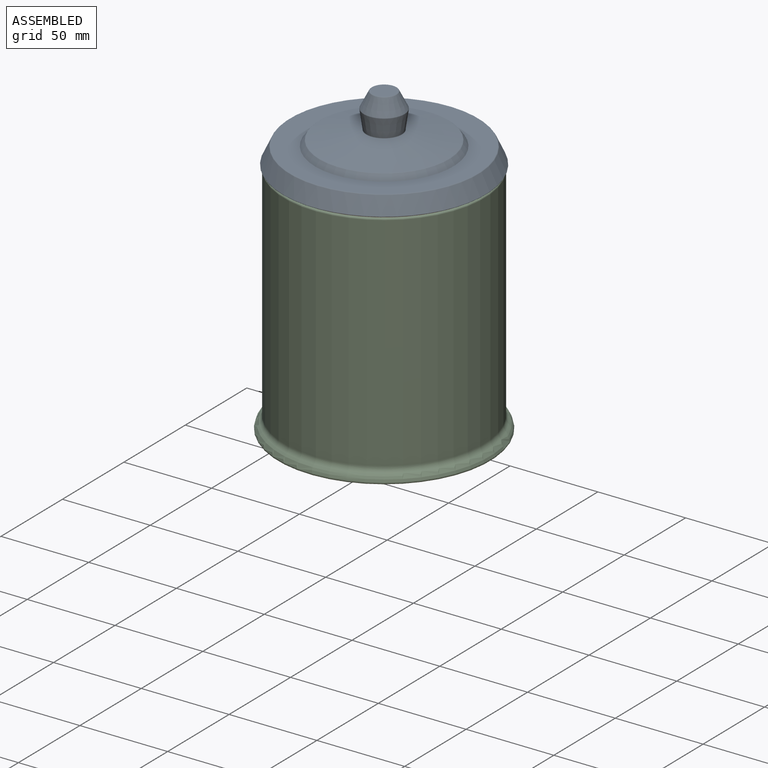
[diagram: assembled view]
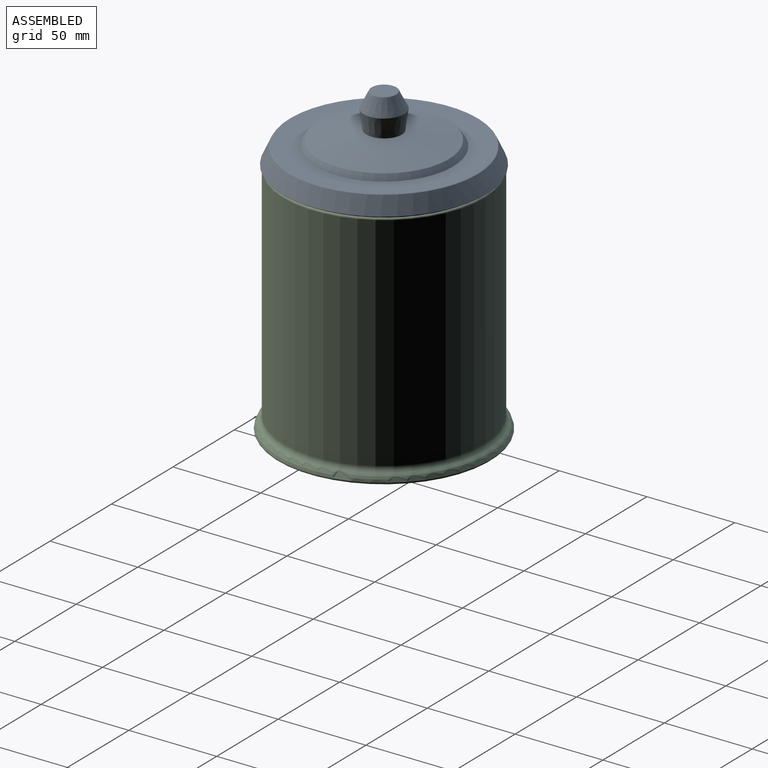
[diagram: assembled view, second angle]
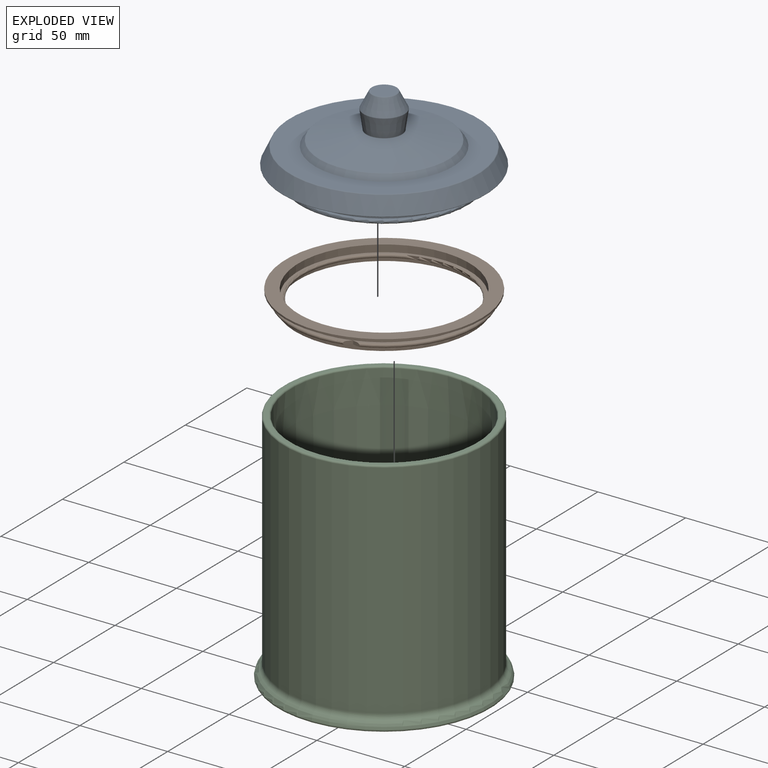
[diagram: exploded view]
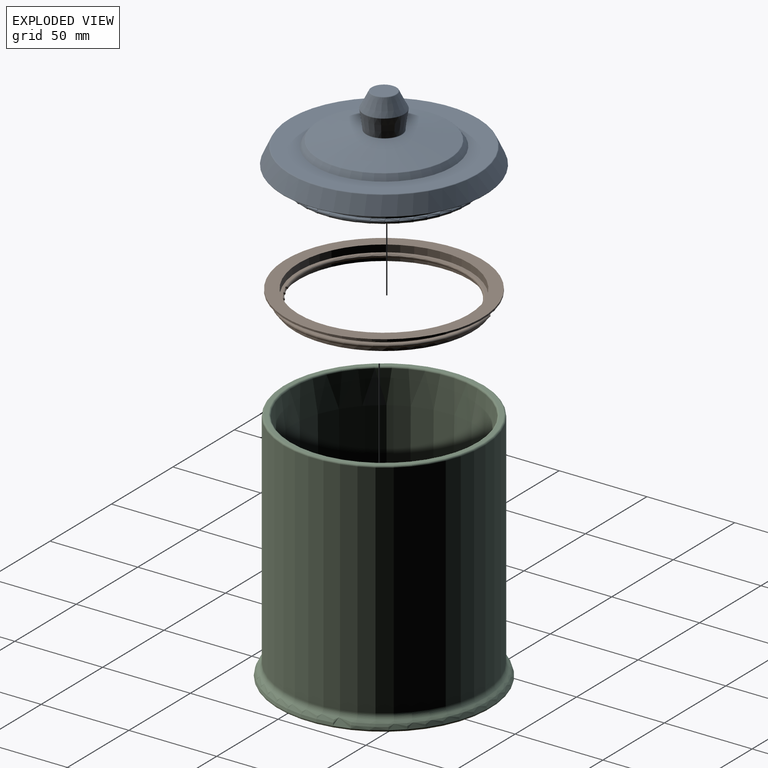
[diagram: exploded view, second angle]
ASSEMBLY  parts=3 mates=4
PART A: 24 faces, bbox 125.4x125.4x46.7 mm
  f0: torus R=53.18mm, axis (0,0,1), area 191.1mm2, adj f1,f23
  f1: cone r=53.18mm half-angle=89.8deg, axis (0,0,1), area 4017.5mm2, adj f0,f2
  f2: cone r=39.36mm half-angle=36deg, axis (0,0,-1), area 917.9mm2, adj f1,f3
  f3: torus R=36.71mm, axis (0,0,1), area 87.2mm2, adj f2,f4
  f4: cone r=10.23mm half-angle=79deg, axis (0,0,-1), area 4000.5mm2, adj f3,f5
  f5: torus R=10.28mm, axis (0,0,1), area 24.2mm2, adj f4,f6
  f6: cone r=10.03mm half-angle=8.3deg, axis (0,0,1), area 727.7mm2, adj f5,f7
  f7: torus R=11.08mm, axis (0,0,1), area 22.4mm2, adj f6,f8
  f8: cone r=11.53mm half-angle=27.1deg, axis (0,0,-1), area 565.4mm2, adj f7,f9
  f9: torus R=6.69mm, axis (0,0,1), area 24mm2, adj f8,f10
  f10: plane 13.39x13.39mm, normal (0,0,1), area 140.8mm2, adj f9
  f11: sphere r=80.14mm, area 5601mm2, adj f12
  f12: torus R=38.83mm, axis (0,0,1), area 990.3mm2, adj f11,f13
  f13: cone r=42.57mm half-angle=2deg, axis (0,0,-1), area 1478.9mm2, adj f12,f14
  f14: torus R=43.77mm, axis (0,0,1), area 416.3mm2, adj f13,f15
  f15: plane 93.6x93.6mm, normal (0,0,-1), area 863.3mm2, adj f14,f16
  f16: torus R=46.8mm, axis (0,0,1), area 468.2mm2, adj f15,f17
  f17: cylinder r=47.8mm len=95.6mm, axis (0,0,1), area 150.2mm2, adj f16,f18
  f18: torus R=46.8mm, axis (0,0,1), area 468.2mm2, adj f17,f19
  f19: plane 93.6x93.6mm, normal (0,0,1), area 87.9mm2, adj f18,f20
  f20: cylinder r=46.5mm len=93mm, axis (0,0,1), area 1753mm2, adj f19,f21
  f21: plane 115.32x115.32mm, normal (0,0,-1), area 3651mm2, adj f20,f22
  f22: torus R=57.66mm, axis (0,0,1), area 182.3mm2, adj f21,f23
  f23: cone r=57.88mm half-angle=25deg, axis (0,0,-1), area 3522.3mm2, adj f0,f22
PART B: 21 faces, bbox 115.3x115.1x8.5 mm
  f0: cylinder r=50.75mm len=101.5mm, axis (0,0,-1), area 797.2mm2, adj f2,f20
  f1: cylinder r=48.75mm len=97.5mm, axis (0,0,-1), area 765.8mm2, adj f12,f20
  f2: plane 104.5x104.38mm, normal (0,0,-1), area 477.9mm2, adj f0,f4,f5,f14,f15,f16,f17,f18
  f3: plane 104.5x104.38mm, normal (0,0,1), area 477.9mm2, adj f4,f5,f6,f14,f15,f16,f17,f18
  f4: torus R=52.25mm, axis (0,0,-1), area 500mm2, adj f2,f3,f14,f17
  f5: torus R=52.25mm, axis (0,0,-1), area 500mm2, adj f2,f3,f15,f16
  f6: cylinder r=50.75mm len=101.5mm, axis (0,0,-1), area 956.6mm2, adj f3,f7
  f7: plane 112x112mm, normal (0,0,-1), area 1760.7mm2, adj f6,f8
  f8: cylinder r=56mm len=112mm, axis (0,0,-1), area 351.9mm2, adj f7,f9
  f9: plane 112x112mm, normal (0,0,1), area 2385.8mm2, adj f8,f10
  f10: cylinder r=48.75mm len=97.5mm, axis (0,0,-1), area 1225.2mm2, adj f9,f11
  f11: plane 97.5x97.5mm, normal (0,0,1), area 452.4mm2, adj f10,f13
  f12: plane 97.5x97.5mm, normal (0,0,-1), area 452.4mm2, adj f1,f13
  f13: torus R=47.25mm, axis (0,0,1), area 920.1mm2, adj f11,f12
  f14: plane 3.56x2.06mm, normal (0.5,0.87,0), area 7.5mm2, adj f2,f3,f4,f19
  f15: plane 3.56x2.06mm, normal (-0.5,0.87,0), area 7.5mm2, adj f2,f3,f5,f19
  f16: plane 3.56x2.06mm, normal (-0.5,-0.87,0), area 7.5mm2, adj f2,f3,f5,f18
  f17: plane 3.56x2.06mm, normal (0.5,-0.87,0), area 7.5mm2, adj f2,f3,f4,f18
  f18: cylinder r=1mm len=2mm, axis (0,0,-1), area 2.1mm2, adj f2,f3,f16,f17
  f19: cylinder r=1mm len=2mm, axis (0,0,-1), area 2.1mm2, adj f2,f3,f14,f15
  f20: plane 101.5x101.5mm, normal (0,0,-1), area 625.2mm2, adj f0,f1
PART C: 82 faces, bbox 132.2x132.2x135.5 mm
  f0: plane 98.5x98.5mm, normal (0,0,-1), area 7314.3mm2, adj f5,f23,f24,f25,f26,f27,f28,f29
  f1: torus R=53.99mm, axis (0,0,1), area 520.8mm2, adj f2,f13
  f2: cone r=52.99mm half-angle=1deg, axis (0,0,1), area 36828.5mm2, adj f1,f3
  f3: torus R=41.02mm, axis (0,0,1), area 4621.2mm2, adj f2,f4
  f4: plane 82.05x82.05mm, normal (0,0,1), area 5287mm2, adj f3
  f5: torus R=49.25mm, axis (0,0,1), area 617.4mm2, adj f0,f6
  f6: torus R=51.75mm, axis (0,0,1), area 628.6mm2, adj f5,f7
  f7: plane 119.53x119.53mm, normal (0,0,-1), area 2807.6mm2, adj f6,f8
  f8: torus R=59.76mm, axis (0,0,1), area 660.1mm2, adj f7,f9
  f9: torus R=54.83mm, axis (0,0,1), area 1653.8mm2, adj f8,f10
  f10: torus R=61.05mm, axis (0,0,1), area 1302.2mm2, adj f9,f11
  f11: cylinder r=57.05mm len=126.5mm, axis (0,0,1), area 45344.6mm2, adj f10,f12
  f12: torus R=56.05mm, axis (0,0,1), area 559.5mm2, adj f11,f13
  f13: plane 112.1x112.1mm, normal (0,0,1), area 712.7mm2, adj f1,f12
  f14: plane 4.85x0.5mm, normal (-1,0,0), area 2.4mm2, adj f15,f41,f42,f43
  f15: plane 5.35x0.5mm, normal (0,-1,0), area 2.7mm2, adj f14,f16,f42,f43
  f16: plane 4.85x0.5mm, normal (1,0,0), area 2.4mm2, adj f15,f17,f42,f43
  f17: plane 1.18x0.5mm, normal (0,-1,0), area 0.6mm2, adj f16,f18,f42,f43
  f18: plane 4.85x0.5mm, normal (-1,0,0), area 2.4mm2, adj f17,f19,f42,f43
  f19: plane 6.03x0.5mm, normal (0,-1,0), area 3mm2, adj f18,f20,f42,f43
  f20: cylinder r=9.9mm len=19.77mm, axis (0,0,-1), area 15mm2, adj f19,f21,f42,f43
  f21: plane 6.03x0.5mm, normal (0,-1,0), area 3mm2, adj f20,f22,f42,f43
  f22: plane 4.85x0.5mm, normal (1,0,0), area 2.4mm2, adj f21,f41,f42,f43
  f23: plane 1.18x0.5mm, normal (0,1,0), area 0.6mm2, adj f0,f24,f40,f42
  f24: plane 4.85x0.5mm, normal (1,0,0), area 2.4mm2, adj f0,f23,f25,f42
  f25: plane 6.03x0.5mm, normal (0,1,0), area 3mm2, adj f0,f24,f26,f42
  f26: cylinder r=9.9mm len=16.92mm, axis (0,0,-1), area 11.4mm2, adj f0,f25,f27,f42
  f27: plane 0.78x0.78mm, normal (-0.71,-0.71,0), area 0.6mm2, adj f0,f26,f28,f42
  f28: cylinder r=11mm len=18.8mm, axis (0,0,-1), area 12.7mm2, adj f0,f27,f29,f42
  f29: plane 7.76x0.5mm, normal (0,1,0), area 3.9mm2, adj f0,f28,f30,f42
  f30: plane 1.13x0.5mm, normal (1,0,0), area 0.6mm2, adj f0,f29,f31,f42
  f31: plane 7.76x0.5mm, normal (0,-1,0), area 3.9mm2, adj f0,f30,f32,f42
  f32: cylinder r=11mm len=21.97mm, axis (0,0,-1), area 16.7mm2, adj f0,f31,f33,f42
  f33: plane 7.76x0.5mm, normal (0,-1,0), area 3.9mm2, adj f0,f32,f34,f42
  f34: plane 1.13x0.5mm, normal (-1,0,0), area 0.6mm2, adj f0,f33,f35,f42
  f35: plane 14.9x0.5mm, normal (0,1,0), area 7.4mm2, adj f0,f34,f36,f42
  f36: plane 4.85x0.5mm, normal (-1,0,0), area 2.4mm2, adj f0,f35,f37,f42
  f37: plane 1.18x0.5mm, normal (0,1,0), area 0.6mm2, adj f0,f36,f38,f42
  f38: plane 4.85x0.5mm, normal (1,0,0), area 2.4mm2, adj f0,f37,f39,f42
  f39: plane 5.35x0.5mm, normal (0,1,0), area 2.7mm2, adj f0,f38,f40,f42
  f40: plane 4.85x0.5mm, normal (-1,0,0), area 2.4mm2, adj f0,f23,f39,f42
  f41: plane 1.18x0.5mm, normal (0,-1,0), area 0.6mm2, adj f14,f22,f42,f43
  f42: plane 37.5x22mm, normal (0,0,-1), area 126.6mm2, adj f14,f15,f16,f17,f18,f19,f20,f21
  f43: plane 19.77x9.33mm, normal (0,0,-1), area 131.3mm2, adj f14,f15,f16,f17,f18,f19,f20,f21
  f44: cylinder r=2.5mm len=5mm, axis (0,0,-1), area 23.6mm2, adj f0,f45
  f45: plane 5x5mm, normal (0,0,-1), area 19.6mm2, adj f44
  f46: plane 5x0.5mm, normal (0,-1,0), area 2.5mm2, adj f0,f47,f53,f54
  f47: plane 3x0.5mm, normal (-1,0,0), area 1.5mm2, adj f0,f46,f48,f54
  f48: plane 5x0.5mm, normal (0,1,0), area 2.5mm2, adj f0,f47,f53,f54
  f49: plane 1.6x0.5mm, normal (1,0,0), area 0.8mm2, adj f50,f52,f54,f55
  f50: plane 3.6x0.5mm, normal (0,1,0), area 1.8mm2, adj f49,f51,f54,f55
  f51: plane 1.6x0.5mm, normal (-1,0,0), area 0.8mm2, adj f50,f52,f54,f55
  f52: plane 3.6x0.5mm, normal (0,-1,0), area 1.8mm2, adj f49,f51,f54,f55
  f53: plane 3x0.5mm, normal (1,0,0), area 1.5mm2, adj f0,f46,f48,f54
  f54: plane 5x3mm, normal (0,0,-1), area 9.2mm2, adj f46,f47,f48,f49,f50,f51,f52,f53
  f55: plane 3.6x1.6mm, normal (0,0,-1), area 5.8mm2, adj f49,f50,f51,f52
  f56: extruded ~0.64x0.5mm, area 0.4mm2, adj f57,f69,f70,f81
  f57: extruded ~0.63x0.5mm, area 0.4mm2, adj f56,f58,f70,f81
  f58: extruded ~1.37x0.5mm, area 0.7mm2, adj f57,f59,f70,f81
  f59: extruded ~1.36x0.5mm, area 0.7mm2, adj f58,f60,f70,f81
  f60: extruded ~0.63x0.5mm, area 0.4mm2, adj f59,f61,f70,f81
  f61: extruded ~0.64x0.5mm, area 0.4mm2, adj f60,f62,f70,f81
  f62: extruded ~1.36x0.5mm, area 0.7mm2, adj f61,f69,f70,f81
  f63: extruded ~1.04x0.58mm, area 0.6mm2, adj f0,f64,f68,f70
  f64: extruded ~2.25x1.4mm, area 1.5mm2, adj f0,f63,f65,f70
  f65: extruded ~1.67x0.5mm, area 0.9mm2, adj f0,f64,f66,f70
  f66: extruded ~1.05x0.58mm, area 0.6mm2, adj f0,f65,f67,f70
  f67: extruded ~2.24x1.39mm, area 1.5mm2, adj f0,f66,f68,f70
  f68: extruded ~1.67x0.5mm, area 0.9mm2, adj f0,f63,f67,f70
  f69: extruded ~1.37x0.5mm, area 0.7mm2, adj f56,f62,f70,f81
  f70: plane 4.49x2.79mm, normal (0,0,-1), area 5.3mm2, adj f56,f57,f58,f59,f60,f61,f62,f63
  f71: plane 0.53x0.5mm, normal (-1,0,0), area 0.3mm2, adj f0,f72,f79,f80
  f72: plane 4.36x0.5mm, normal (0,1,0), area 2.2mm2, adj f0,f71,f73,f80
  f73: plane 0.5x0.45mm, normal (1,0,0), area 0.2mm2, adj f0,f72,f74,f80
  f74: plane 1.14x0.89mm, normal (0.79,-0.62,0), area 0.7mm2, adj f0,f73,f75,f80
  f75: plane 0.5x0.37mm, normal (-0.62,-0.79,0), area 0.2mm2, adj f0,f74,f76,f80
  f76: plane 0.5x0.44mm, normal (-0.77,0.63,0), area 0.3mm2, adj f0,f75,f77,f80
  f77: extruded ~0.5x0.36mm, area 0.2mm2, adj f0,f76,f78,f80
  f78: extruded ~1.08x0.5mm, area 0.5mm2, adj f0,f77,f79,f80
  f79: plane 2.72x0.5mm, normal (0,-1,0), area 1.4mm2, adj f0,f71,f78,f80
  f80: plane 4.36x1.59mm, normal (0,0,-1), area 2.8mm2, adj f71,f72,f73,f74,f75,f76,f77,f78
  f81: plane 3.56x1.69mm, normal (0,0,-1), area 5.1mm2, adj f56,f57,f58,f59,f60,f61,f62,f69
PLACE A rot(axis=(0,0,1),10.8deg) t=(40.34,68.54,-152.39)mm
PLACE B rot(axis=(0,0,1),18.2deg) t=(40.34,68.54,-31.89)mm
PLACE C rot(axis=(0,0,-1),71.8deg) t=(40.34,68.54,-153.39)mm fixed
MATE planar A.f0 <-> B.f0  axis (0,0,-1) through (40.34,68.54,-16.89)mm
MATE planar B.f0 <-> C.f11  axis (0,0,-1) through (40.34,68.54,-17.89)mm
MATE cylindrical A.f2 <-> B.f0  axis (0,0,-1) through (40.34,68.54,-25.39)mm
MATE cylindrical A.f2 <-> C.f11  axis (0,0,-1) through (40.34,68.54,-11.98)mm
